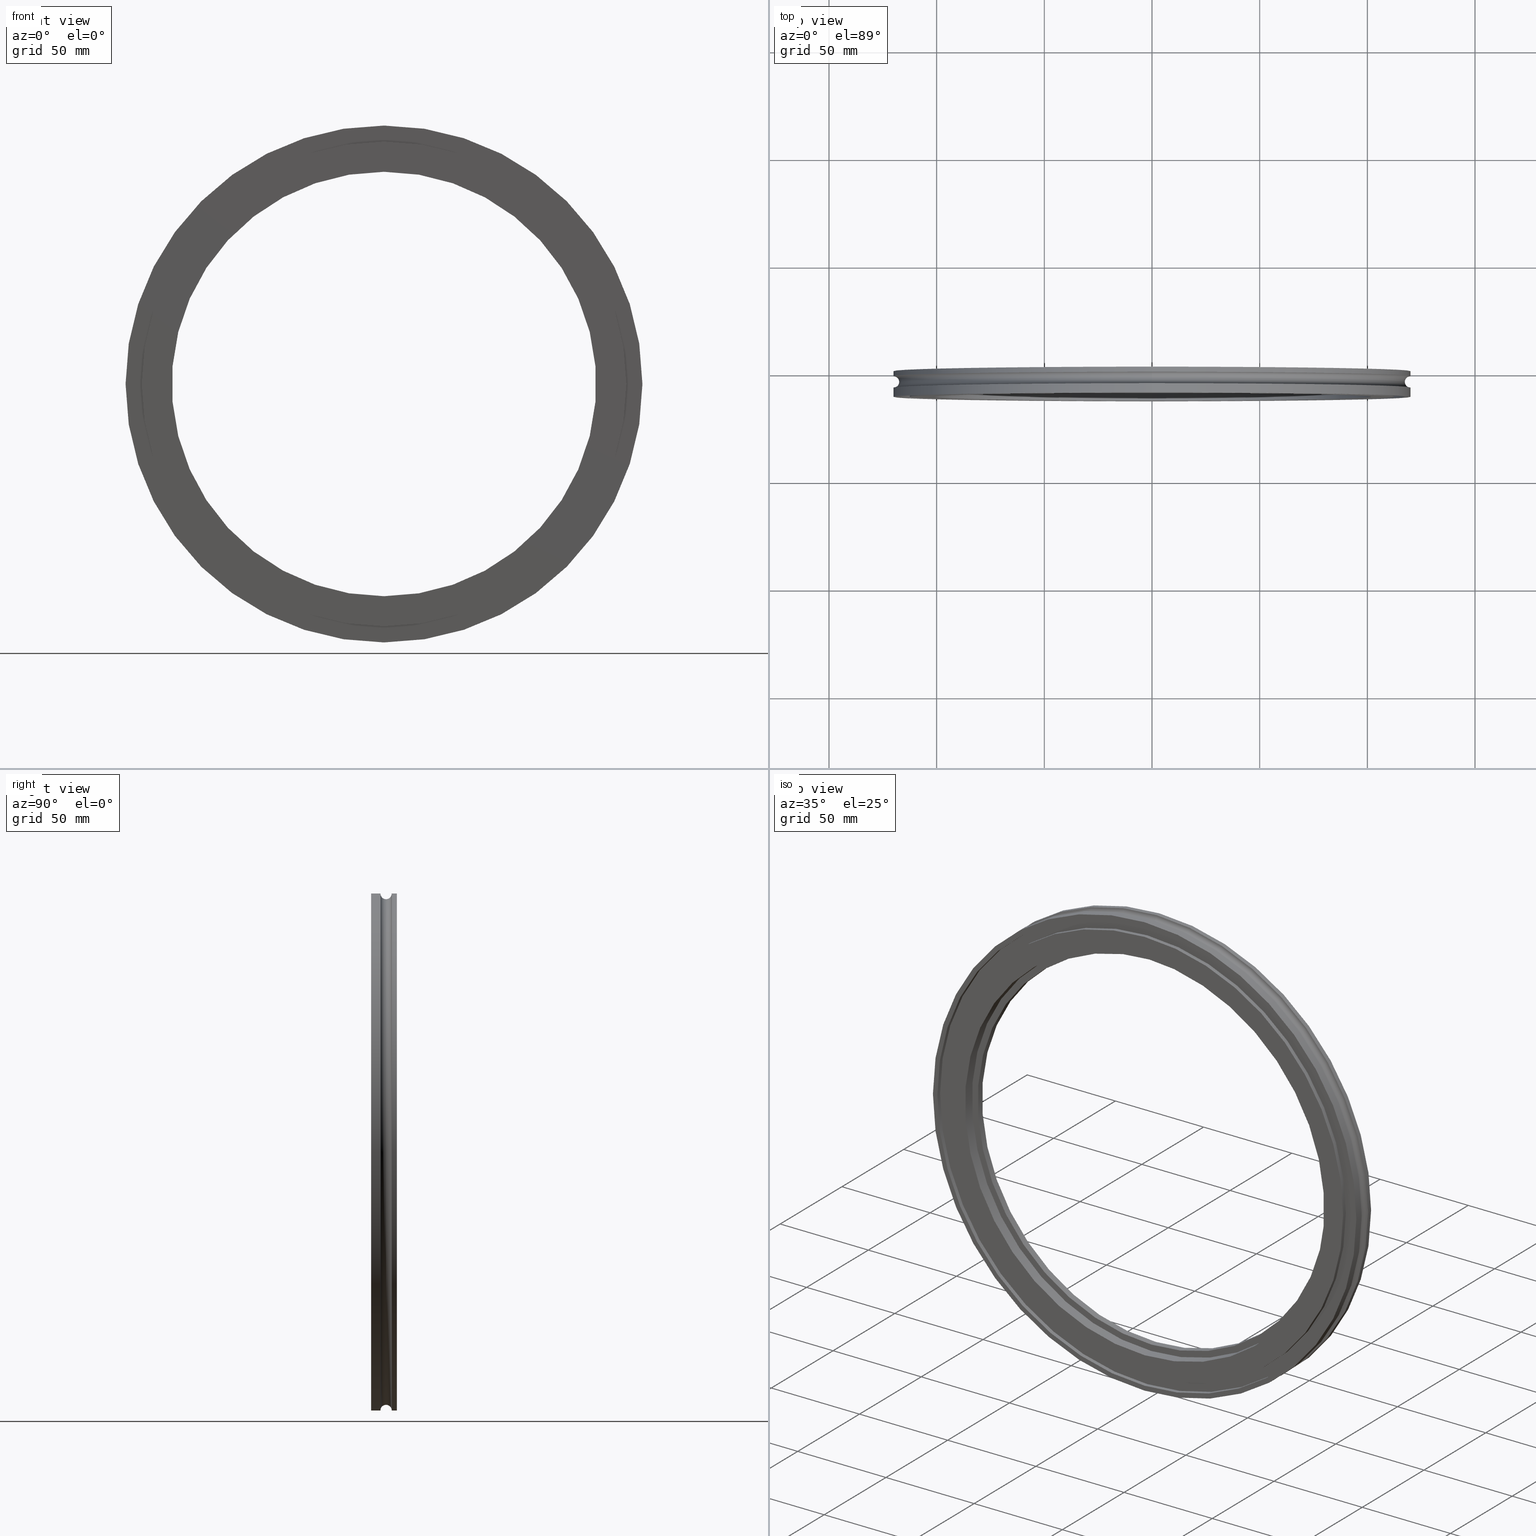
[diagram: canonical four-view strip — front | top / right | iso, engineering-drawing reading convention]
A machine part, canonical four-view strip (front | top / right | iso — engineering-drawing reading convention). The complete STEP part file that produces these views, byte-faithful:
ISO-10303-21;
HEADER;
FILE_DESCRIPTION (( 'STEP AP214' ),
    '1' );
FILE_NAME ('813003.STEP',
    '2024-01-16T15:40:27',
    ( '' ),
    ( '' ),
    'SwSTEP 2.0',
    'SolidWorks 2022',
    '' );
FILE_SCHEMA (( 'AUTOMOTIVE_DESIGN' ));
ENDSEC;

DATA;
#1 = SURFACE_SIDE_STYLE ('',( #209 ) ) ;
#2 = DIRECTION ( 'NONE',  ( -0.000000000000000000, 1.000000000000000000, -0.000000000000000000 ) ) ;
#3 = EDGE_CURVE ( 'NONE', #571, #254, #626, .T. ) ;
#4 = EDGE_LOOP ( 'NONE', ( #165, #441, #622, #643 ) ) ;
#5 = SURFACE_STYLE_FILL_AREA ( #435 ) ;
#6 = AXIS2_PLACEMENT_3D ( 'NONE', #371, #2, #582 ) ;
#7 = CYLINDRICAL_SURFACE ( 'NONE', #499, 4.621999999999999886 ) ;
#8 = AXIS2_PLACEMENT_3D ( 'NONE', #625, #617, #677 ) ;
#9 = VERTEX_POINT ( 'NONE', #177 ) ;
#10 = PRESENTATION_LAYER_ASSIGNMENT (  '', '', ( #127 ) ) ;
#11 = DIRECTION ( 'NONE',  ( -0.000000000000000000, 1.000000000000000000, -0.000000000000000000 ) ) ;
#12 = FACE_BOUND ( 'NONE', #592, .T. ) ;
#13 = DIRECTION ( 'NONE',  ( 0.000000000000000000, 0.000000000000000000, 1.000000000000000000 ) ) ;
#14 = EDGE_CURVE ( 'NONE', #276, #164, #326, .T. ) ;
#15 = ORIENTED_EDGE ( 'NONE', *, *, #360, .F. ) ;
#16 = PLANE ( 'NONE',  #294 ) ;
#17 = AXIS2_PLACEMENT_3D ( 'NONE', #166, #119, #375 ) ;
#18 = TOROIDAL_SURFACE ( 'NONE', #505, 4.724999999999999645, 0.1029999999999999943 ) ;
#19 = DIRECTION ( 'NONE',  ( -0.000000000000000000, 1.000000000000000000, -0.000000000000000000 ) ) ;
#20 = DIRECTION ( 'NONE',  ( -0.000000000000000000, 1.000000000000000000, -0.000000000000000000 ) ) ;
#21 = DIRECTION ( 'NONE',  ( 0.000000000000000000, 0.000000000000000000, 1.000000000000000000 ) ) ;
#22 = ADVANCED_FACE ( 'NONE', ( #493 ), #651, .F. ) ;
#23 = DIRECTION ( 'NONE',  ( -0.000000000000000000, 1.000000000000000000, -0.000000000000000000 ) ) ;
#24 = AXIS2_PLACEMENT_3D ( 'NONE', #256, #357, #407 ) ;
#25 = VERTEX_POINT ( 'NONE', #437 ) ;
#26 = AXIS2_PLACEMENT_3D ( 'NONE', #515, #23, #560 ) ;
#27 = MANIFOLD_SOLID_BREP ( 'Revolve1', #476 ) ;
#28 = AXIS2_PLACEMENT_3D ( 'NONE', #122, #173, #182 ) ;
#29 = DIRECTION ( 'NONE',  ( 0.000000000000000000, 0.000000000000000000, 1.000000000000000000 ) ) ;
#30 = AXIS2_PLACEMENT_3D ( 'NONE', #697, #273, #480 ) ;
#31 = FACE_OUTER_BOUND ( 'NONE', #120, .T. ) ;
#32 = ORIENTED_EDGE ( 'NONE', *, *, #110, .F. ) ;
#33 = EDGE_CURVE ( 'NONE', #9, #495, #641, .T. ) ;
#34 = CARTESIAN_POINT ( 'NONE',  ( 4.751629580691730769E-16, -0.2500000000000001110, -3.880000000000000338 ) ) ;
#35 = FACE_OUTER_BOUND ( 'NONE', #62, .T. ) ;
#36 = ORIENTED_EDGE ( 'NONE', *, *, #306, .F. ) ;
#37 = CARTESIAN_POINT ( 'NONE',  ( 0.000000000000000000, -0.3850000000000000089, 4.625000000000000000 ) ) ;
#38 = DIRECTION ( 'NONE',  ( -0.000000000000000000, 1.000000000000000000, -0.000000000000000000 ) ) ;
#39 = ORIENTED_EDGE ( 'NONE', *, *, #619, .T. ) ;
#40 = AXIS2_PLACEMENT_3D ( 'NONE', #135, #336, #603 ) ;
#41 = CIRCLE ( 'NONE', #26, 4.009999999999999787 ) ;
#42 = FACE_OUTER_BOUND ( 'NONE', #533, .T. ) ;
#43 = CIRCLE ( 'NONE', #251, 3.880000000000000338 ) ;
#44 = DIRECTION ( 'NONE',  ( -0.000000000000000000, 1.000000000000000000, -0.000000000000000000 ) ) ;
#45 = ORIENTED_EDGE ( 'NONE', *, *, #102, .T. ) ;
#46 = ORIENTED_EDGE ( 'NONE', *, *, #645, .F. ) ;
#47 = SHAPE_DEFINITION_REPRESENTATION ( #485, #190 ) ;
#48 = CARTESIAN_POINT ( 'NONE',  ( 0.000000000000000000, -0.3850000000000000089, 0.000000000000000000 ) ) ;
#49 = EDGE_LOOP ( 'NONE', ( #654, #680, #691, #133 ) ) ;
#50 = EDGE_CURVE ( 'NONE', #430, #581, #150, .T. ) ;
#51 = CARTESIAN_POINT ( 'NONE',  ( 0.000000000000000000, -0.2500000000000001110, 3.880000000000000338 ) ) ;
#52 = ORIENTED_EDGE ( 'NONE', *, *, #292, .F. ) ;
#53 = CIRCLE ( 'NONE', #461, 4.724999999999998757 ) ;
#54 =( NAMED_UNIT ( * ) PLANE_ANGLE_UNIT ( ) SI_UNIT ( $, .RADIAN. ) );
#55 = FACE_OUTER_BOUND ( 'NONE', #686, .T. ) ;
#56 =( GEOMETRIC_REPRESENTATION_CONTEXT ( 3 ) GLOBAL_UNCERTAINTY_ASSIGNED_CONTEXT ( ( #319 ) ) GLOBAL_UNIT_ASSIGNED_CONTEXT ( ( #484, #63, #660 ) ) REPRESENTATION_CONTEXT ( 'NONE', 'WORKASPACE' ) );
#57 = VERTEX_POINT ( 'NONE', #280 ) ;
#58 = EDGE_CURVE ( 'NONE', #650, #531, #241, .T. ) ;
#59 = CARTESIAN_POINT ( 'NONE',  ( 0.000000000000000000, 0.000000000000000000, 0.000000000000000000 ) ) ;
#60 = ORIENTED_EDGE ( 'NONE', *, *, #477, .F. ) ;
#61 = CARTESIAN_POINT ( 'NONE',  ( 5.786456125971243047E-16, 0.000000000000000000, -4.724999999999999645 ) ) ;
#62 = EDGE_LOOP ( 'NONE', ( #272, #215 ) ) ;
#63 =( NAMED_UNIT ( * ) PLANE_ANGLE_UNIT ( ) SI_UNIT ( $, .RADIAN. ) );
#64 = DIRECTION ( 'NONE',  ( -0.000000000000000000, 1.000000000000000000, -0.000000000000000000 ) ) ;
#65 = AXIS2_PLACEMENT_3D ( 'NONE', #286, #64, #447 ) ;
#66 = EDGE_CURVE ( 'NONE', #531, #198, #204, .T. ) ;
#67 = CARTESIAN_POINT ( 'NONE',  ( 0.000000000000000000, -0.4700000000000000289, 0.000000000000000000 ) ) ;
#68 = DIRECTION ( 'NONE',  ( 0.000000000000000000, -0.000000000000000000, -1.000000000000000000 ) ) ;
#69 = EDGE_CURVE ( 'NONE', #642, #365, #43, .T. ) ;
#70 = FILL_AREA_STYLE_COLOUR ( '', #672 ) ;
#71 = EDGE_CURVE ( 'NONE', #136, #107, #139, .T. ) ;
#72 = DIMENSIONAL_EXPONENTS ( 1.000000000000000000, 0.000000000000000000, 0.000000000000000000, 0.000000000000000000, 0.000000000000000000, 0.000000000000000000, 0.000000000000000000 ) ;
#73 = CARTESIAN_POINT ( 'NONE',  ( 0.000000000000000000, 0.000000000000000000, 0.000000000000000000 ) ) ;
#74 = DIRECTION ( 'NONE',  ( 0.000000000000000000, 0.000000000000000000, 1.000000000000000000 ) ) ;
#75 = CARTESIAN_POINT ( 'NONE',  ( 4.621999999999999886, 0.000000000000000000, 0.000000000000000000 ) ) ;
#76 = VECTOR ( 'NONE', #20, 39.37007874015748143 ) ;
#77 = CIRCLE ( 'NONE', #605, 4.621999999999999886 ) ;
#78 = AXIS2_PLACEMENT_3D ( 'NONE', #406, #88, #144 ) ;
#79 = EDGE_CURVE ( 'NONE', #581, #430, #314, .T. ) ;
#80 = DIRECTION ( 'NONE',  ( -0.000000000000000000, 1.000000000000000000, -0.000000000000000000 ) ) ;
#81 = DIRECTION ( 'NONE',  ( -0.000000000000000000, 1.000000000000000000, -0.000000000000000000 ) ) ;
#82 = FACE_BOUND ( 'NONE', #172, .T. ) ;
#83 = LINE ( 'NONE', #468, #246 ) ;
#84 = AXIS2_PLACEMENT_3D ( 'NONE', #117, #330, #540 ) ;
#85 = ORIENTED_EDGE ( 'NONE', *, *, #537, .F. ) ;
#86 = AXIS2_PLACEMENT_3D ( 'NONE', #197, #635, #152 ) ;
#87 = ADVANCED_FACE ( 'NONE', ( #128 ), #284, .F. ) ;
#88 = DIRECTION ( 'NONE',  ( -0.000000000000000000, 1.000000000000000000, -0.000000000000000000 ) ) ;
#89 = DIRECTION ( 'NONE',  ( -0.000000000000000000, 1.000000000000000000, -0.000000000000000000 ) ) ;
#90 = CARTESIAN_POINT ( 'NONE',  ( 0.000000000000000000, -0.3850000000000000089, 0.000000000000000000 ) ) ;
#91 = CARTESIAN_POINT ( 'NONE',  ( 5.786456125971244033E-16, -0.2999999999999999889, -4.725000000000000533 ) ) ;
#92 = EDGE_LOOP ( 'NONE', ( #633, #601, #222, #15 ) ) ;
#93 = VERTEX_POINT ( 'NONE', #339 ) ;
#94 = DIRECTION ( 'NONE',  ( 0.000000000000000000, 0.000000000000000000, 1.000000000000000000 ) ) ;
#95 = CARTESIAN_POINT ( 'NONE',  ( 5.663991446056508491E-16, -0.4699999999999999734, -4.625000000000000000 ) ) ;
#96 = ORIENTED_EDGE ( 'NONE', *, *, #388, .T. ) ;
#97 = AXIS2_PLACEMENT_3D ( 'NONE', #549, #382, #74 ) ;
#98 = AXIS2_PLACEMENT_3D ( 'NONE', #48, #221, #646 ) ;
#99 = ORIENTED_EDGE ( 'NONE', *, *, #370, .F. ) ;
#100 = CIRCLE ( 'NONE', #521, 0.1029999999999999666 ) ;
#101 = CARTESIAN_POINT ( 'NONE',  ( 0.000000000000000000, 0.000000000000000000, 0.000000000000000000 ) ) ;
#102 = EDGE_CURVE ( 'NONE', #628, #25, #405, .T. ) ;
#103 = CARTESIAN_POINT ( 'NONE',  ( 4.910833664580885594E-16, 0.000000000000000000, -4.009999999999998899 ) ) ;
#104 = ORIENTED_EDGE ( 'NONE', *, *, #678, .T. ) ;
#105 = ORIENTED_EDGE ( 'NONE', *, *, #14, .F. ) ;
#106 = FACE_OUTER_BOUND ( 'NONE', #92, .T. ) ;
#107 = VERTEX_POINT ( 'NONE', #632 ) ;
#108 = ORIENTED_EDGE ( 'NONE', *, *, #609, .T. ) ;
#109 = EDGE_LOOP ( 'NONE', ( #526, #213, #584, #684 ) ) ;
#110 = EDGE_CURVE ( 'NONE', #581, #474, #83, .T. ) ;
#111 = ORIENTED_EDGE ( 'NONE', *, *, #187, .T. ) ;
#112 = CIRCLE ( 'NONE', #24, 3.880000000000000338 ) ;
#113 = AXIS2_PLACEMENT_3D ( 'NONE', #577, #318, #264 ) ;
#114 = AXIS2_PLACEMENT_3D ( 'NONE', #243, #289, #68 ) ;
#115 = DIRECTION ( 'NONE',  ( -0.000000000000000000, 1.000000000000000000, -0.000000000000000000 ) ) ;
#116 = ORIENTED_EDGE ( 'NONE', *, *, #288, .F. ) ;
#117 = CARTESIAN_POINT ( 'NONE',  ( 0.000000000000000000, -0.1970000000000000084, 0.000000000000000000 ) ) ;
#118 =( NAMED_UNIT ( * ) PLANE_ANGLE_UNIT ( ) SI_UNIT ( $, .RADIAN. ) );
#119 = DIRECTION ( 'NONE',  ( -0.000000000000000000, 1.000000000000000000, -0.000000000000000000 ) ) ;
#120 = EDGE_LOOP ( 'NONE', ( #99, #52, #647, #240 ) ) ;
#121 = CARTESIAN_POINT ( 'NONE',  ( 5.660317505659066563E-16, 0.000000000000000000, -4.621999999999999886 ) ) ;
#122 = CARTESIAN_POINT ( 'NONE',  ( 0.000000000000000000, 0.000000000000000000, 0.000000000000000000 ) ) ;
#123 = DIRECTION ( 'NONE',  ( -1.000000000000000000, 0.000000000000000000, 0.000000000000000000 ) ) ;
#124 = AXIS2_PLACEMENT_3D ( 'NONE', #212, #218, #364 ) ;
#125 = PRODUCT_RELATED_PRODUCT_CATEGORY ( 'part', '', ( #206 ) ) ;
#126 = AXIS2_PLACEMENT_3D ( 'NONE', #669, #191, #140 ) ;
#127 = STYLED_ITEM ( 'NONE', ( #665 ), #27 ) ;
#128 = FACE_OUTER_BOUND ( 'NONE', #195, .T. ) ;
#129 = DIRECTION ( 'NONE',  ( -0.000000000000000000, 1.000000000000000000, -0.000000000000000000 ) ) ;
#130 = EDGE_LOOP ( 'NONE', ( #528, #562 ) ) ;
#131 = DIRECTION ( 'NONE',  ( 0.000000000000000000, 0.000000000000000000, 1.000000000000000000 ) ) ;
#132 = FACE_OUTER_BOUND ( 'NONE', #683, .T. ) ;
#133 = ORIENTED_EDGE ( 'NONE', *, *, #609, .F. ) ;
#134 = EDGE_CURVE ( 'NONE', #365, #642, #112, .T. ) ;
#135 = CARTESIAN_POINT ( 'NONE',  ( 0.000000000000000000, -0.1100000000000000006, 0.000000000000000000 ) ) ;
#136 = VERTEX_POINT ( 'NONE', #551 ) ;
#137 = AXIS2_PLACEMENT_3D ( 'NONE', #297, #129, #21 ) ;
#138 = CIRCLE ( 'NONE', #555, 4.429000000000000270 ) ;
#139 = CIRCLE ( 'NONE', #30, 3.880000000000000338 ) ;
#140 = DIRECTION ( 'NONE',  ( 0.000000000000000000, 0.000000000000000000, 1.000000000000000000 ) ) ;
#141 = DIRECTION ( 'NONE',  ( -0.000000000000000000, 1.000000000000000000, -0.000000000000000000 ) ) ;
#142 = EDGE_CURVE ( 'NONE', #323, #487, #604, .T. ) ;
#143 = CYLINDRICAL_SURFACE ( 'NONE', #563, 4.625000000000000000 ) ;
#144 = DIRECTION ( 'NONE',  ( 0.000000000000000000, 0.000000000000000000, 1.000000000000000000 ) ) ;
#145 = CARTESIAN_POINT ( 'NONE',  ( 0.000000000000000000, 0.000000000000000000, 0.000000000000000000 ) ) ;
#146 = ORIENTED_EDGE ( 'NONE', *, *, #500, .F. ) ;
#147 = AXIS2_PLACEMENT_3D ( 'NONE', #145, #278, #170 ) ;
#148 = CIRCLE ( 'NONE', #664, 4.621999999999999886 ) ;
#149 = MECHANICAL_DESIGN_GEOMETRIC_PRESENTATION_REPRESENTATION (  '', ( #616 ), #203 ) ;
#150 = CIRCLE ( 'NONE', #508, 4.429000000000000270 ) ;
#151 = LINE ( 'NONE', #463, #690 ) ;
#152 = DIRECTION ( 'NONE',  ( 0.000000000000000000, 0.000000000000000000, 1.000000000000000000 ) ) ;
#153 = ORIENTED_EDGE ( 'NONE', *, *, #671, .T. ) ;
#154 = CARTESIAN_POINT ( 'NONE',  ( 5.423960673423627301E-16, -0.4700000000000000289, -4.429000000000000270 ) ) ;
#155 = FACE_OUTER_BOUND ( 'NONE', #317, .T. ) ;
#156 = EDGE_LOOP ( 'NONE', ( #472, #469, #108, #539 ) ) ;
#157 = EDGE_CURVE ( 'NONE', #189, #374, #200, .T. ) ;
#158 = FILL_AREA_STYLE ('',( #325 ) ) ;
#159 = LINE ( 'NONE', #267, #614 ) ;
#160 = ORIENTED_EDGE ( 'NONE', *, *, #572, .F. ) ;
#161 = ORIENTED_EDGE ( 'NONE', *, *, #69, .F. ) ;
#162 = PRODUCT_CONTEXT ( 'NONE', #652, 'mechanical' ) ;
#163 = FACE_BOUND ( 'NONE', #211, .T. ) ;
#164 = VERTEX_POINT ( 'NONE', #91 ) ;
#165 = ORIENTED_EDGE ( 'NONE', *, *, #629, .F. ) ;
#166 = CARTESIAN_POINT ( 'NONE',  ( 0.000000000000000000, 0.000000000000000000, 0.000000000000000000 ) ) ;
#167 = ADVANCED_FACE ( 'NONE', ( #569 ), #143, .F. ) ;
#168 = ORIENTED_EDGE ( 'NONE', *, *, #439, .T. ) ;
#169 = SURFACE_STYLE_USAGE ( .BOTH. , #1 ) ;
#170 = DIRECTION ( 'NONE',  ( 0.000000000000000000, 0.000000000000000000, 1.000000000000000000 ) ) ;
#171 = UNCERTAINTY_MEASURE_WITH_UNIT (LENGTH_MEASURE( 1.000000000000000082E-05 ), #378, 'distance_accuracy_value', 'NONE');
#172 = EDGE_LOOP ( 'NONE', ( #265, #329 ) ) ;
#173 = DIRECTION ( 'NONE',  ( -0.000000000000000000, 1.000000000000000000, -0.000000000000000000 ) ) ;
#174 =( LENGTH_UNIT ( ) NAMED_UNIT ( * ) SI_UNIT ( $, .METRE. ) );
#175 = CARTESIAN_POINT ( 'NONE',  ( 0.000000000000000000, -0.4699999999999999734, 4.625000000000000000 ) ) ;
#176 = ORIENTED_EDGE ( 'NONE', *, *, #306, .T. ) ;
#177 = CARTESIAN_POINT ( 'NONE',  ( 0.000000000000000000, 0.000000000000000000, 4.724999999999999645 ) ) ;
#178 = DIRECTION ( 'NONE',  ( 1.224646799147350989E-16, 0.000000000000000000, -1.000000000000000000 ) ) ;
#179 = DIRECTION ( 'NONE',  ( -0.000000000000000000, 1.000000000000000000, -0.000000000000000000 ) ) ;
#180 = ADVANCED_FACE ( 'NONE', ( #35, #459 ), #308, .F. ) ;
#181 = CARTESIAN_POINT ( 'NONE',  ( 0.000000000000000000, -0.1970000000000000084, 0.000000000000000000 ) ) ;
#182 = DIRECTION ( 'NONE',  ( 0.000000000000000000, 0.000000000000000000, 1.000000000000000000 ) ) ;
#183 = AXIS2_PLACEMENT_3D ( 'NONE', #302, #89, #675 ) ;
#184 = CYLINDRICAL_SURFACE ( 'NONE', #390, 3.880000000000000338 ) ;
#185 = AXIS2_PLACEMENT_3D ( 'NONE', #449, #662, #389 ) ;
#186 = CARTESIAN_POINT ( 'NONE',  ( 5.786456125971243047E-16, -0.4699999999999998623, -4.724999999999999645 ) ) ;
#187 = EDGE_CURVE ( 'NONE', #531, #650, #53, .T. ) ;
#188 = DIRECTION ( 'NONE',  ( 0.000000000000000000, 0.000000000000000000, 1.000000000000000000 ) ) ;
#189 = VERTEX_POINT ( 'NONE', #95 ) ;
#190 = ADVANCED_BREP_SHAPE_REPRESENTATION ( '813003', ( #27, #466 ), #367 ) ;
#191 = DIRECTION ( 'NONE',  ( -0.000000000000000000, 1.000000000000000000, 0.000000000000000000 ) ) ;
#192 = EDGE_CURVE ( 'NONE', #487, #323, #576, .T. ) ;
#193 = LINE ( 'NONE', #345, #489 ) ;
#194 = DIRECTION ( 'NONE',  ( 0.000000000000000000, 0.000000000000000000, 1.000000000000000000 ) ) ;
#195 = EDGE_LOOP ( 'NONE', ( #648, #587, #425, #630 ) ) ;
#196 = DIRECTION ( 'NONE',  ( -0.000000000000000000, 1.000000000000000000, -0.000000000000000000 ) ) ;
#197 = CARTESIAN_POINT ( 'NONE',  ( 0.000000000000000000, 0.000000000000000000, 0.000000000000000000 ) ) ;
#198 = VERTEX_POINT ( 'NONE', #258 ) ;
#199 = CARTESIAN_POINT ( 'NONE',  ( 5.663991446056508491E-16, -0.3850000000000000089, -4.625000000000000000 ) ) ;
#200 = CIRCLE ( 'NONE', #350, 4.625000000000000000 ) ;
#201 = DIRECTION ( 'NONE',  ( -0.000000000000000000, 1.000000000000000000, -0.000000000000000000 ) ) ;
#202 = VECTOR ( 'NONE', #327, 39.37007874015748143 ) ;
#203 =( GEOMETRIC_REPRESENTATION_CONTEXT ( 3 ) GLOBAL_UNCERTAINTY_ASSIGNED_CONTEXT ( ( #171 ) ) GLOBAL_UNIT_ASSIGNED_CONTEXT ( ( #378, #118, #590 ) ) REPRESENTATION_CONTEXT ( 'NONE', 'WORKASPACE' ) );
#204 = CIRCLE ( 'NONE', #296, 0.1029999999999999666 ) ;
#205 = CARTESIAN_POINT ( 'NONE',  ( 0.000000000000000000, -0.3850000000000000089, 0.000000000000000000 ) ) ;
#206 = PRODUCT ( '813003', '813003', '', ( #162 ) ) ;
#207 = CARTESIAN_POINT ( 'NONE',  ( 0.000000000000000000, -0.2500000000000001110, 4.009999999999998899 ) ) ;
#208 = EDGE_LOOP ( 'NONE', ( #373, #39 ) ) ;
#209 = SURFACE_STYLE_FILL_AREA ( #158 ) ;
#210 = LINE ( 'NONE', #498, #554 ) ;
#211 = EDGE_LOOP ( 'NONE', ( #548, #688 ) ) ;
#212 = CARTESIAN_POINT ( 'NONE',  ( 4.429000000000000270, -0.4700000000000000289, 0.000000000000000000 ) ) ;
#213 = ORIENTED_EDGE ( 'NONE', *, *, #558, .T. ) ;
#214 = VECTOR ( 'NONE', #685, 39.37007874015748143 ) ;
#215 = ORIENTED_EDGE ( 'NONE', *, *, #331, .F. ) ;
#216 = AXIS2_PLACEMENT_3D ( 'NONE', #275, #229, #640 ) ;
#217 = ADVANCED_FACE ( 'NONE', ( #155 ), #305, .T. ) ;
#218 = DIRECTION ( 'NONE',  ( -0.000000000000000000, 1.000000000000000000, 0.000000000000000000 ) ) ;
#219 = EDGE_LOOP ( 'NONE', ( #400, #529 ) ) ;
#220 = ORIENTED_EDGE ( 'NONE', *, *, #58, .T. ) ;
#221 = DIRECTION ( 'NONE',  ( -0.000000000000000000, 1.000000000000000000, -0.000000000000000000 ) ) ;
#222 = ORIENTED_EDGE ( 'NONE', *, *, #477, .T. ) ;
#223 = DIRECTION ( 'NONE',  ( -0.000000000000000000, 1.000000000000000000, -0.000000000000000000 ) ) ;
#224 = CYLINDRICAL_SURFACE ( 'NONE', #17, 4.429000000000000270 ) ;
#225 = ORIENTED_EDGE ( 'NONE', *, *, #381, .F. ) ;
#226 = CARTESIAN_POINT ( 'NONE',  ( 0.000000000000000000, -0.09400000000000001410, 0.000000000000000000 ) ) ;
#227 = AXIS2_PLACEMENT_3D ( 'NONE', #309, #252, #255 ) ;
#228 = CIRCLE ( 'NONE', #78, 4.724999999999999645 ) ;
#229 = DIRECTION ( 'NONE',  ( -0.000000000000000000, 1.000000000000000000, -0.000000000000000000 ) ) ;
#230 = CARTESIAN_POINT ( 'NONE',  ( 0.000000000000000000, -0.2500000000000001110, 0.000000000000000000 ) ) ;
#231 = FACE_OUTER_BOUND ( 'NONE', #156, .T. ) ;
#232 = EDGE_LOOP ( 'NONE', ( #46, #263, #153, #168 ) ) ;
#233 = DIRECTION ( 'NONE',  ( 0.000000000000000000, 0.000000000000000000, 1.000000000000000000 ) ) ;
#234 = DIRECTION ( 'NONE',  ( -0.000000000000000000, 1.000000000000000000, -0.000000000000000000 ) ) ;
#235 = CARTESIAN_POINT ( 'NONE',  ( 0.000000000000000000, 0.000000000000000000, 0.000000000000000000 ) ) ;
#236 = CIRCLE ( 'NONE', #98, 4.625000000000000000 ) ;
#237 = ADVANCED_FACE ( 'NONE', ( #509 ), #667, .F. ) ;
#238 = FACE_OUTER_BOUND ( 'NONE', #404, .T. ) ;
#239 = VECTOR ( 'NONE', #80, 39.37007874015748143 ) ;
#240 = ORIENTED_EDGE ( 'NONE', *, *, #338, .T. ) ;
#241 = CIRCLE ( 'NONE', #410, 4.724999999999998757 ) ;
#242 = CARTESIAN_POINT ( 'NONE',  ( 0.000000000000000000, -0.4700000000000000844, 0.000000000000000000 ) ) ;
#243 = CARTESIAN_POINT ( 'NONE',  ( 3.880000000000000338, -0.1100000000000000006, 0.000000000000000000 ) ) ;
#244 = PRODUCT_DEFINITION ( 'UNKNOWN', '', #295, #413 ) ;
#245 = DIRECTION ( 'NONE',  ( 1.000000000000000000, 0.000000000000000000, 1.224646799147353207E-16 ) ) ;
#246 = VECTOR ( 'NONE', #201, 39.37007874015748143 ) ;
#247 = CARTESIAN_POINT ( 'NONE',  ( 0.000000000000000000, -0.09400000000000001410, 4.724999999999999645 ) ) ;
#248 = CIRCLE ( 'NONE', #113, 4.009999999999998899 ) ;
#249 = VECTOR ( 'NONE', #673, 39.37007874015748143 ) ;
#250 = ORIENTED_EDGE ( 'NONE', *, *, #338, .F. ) ;
#251 = AXIS2_PLACEMENT_3D ( 'NONE', #230, #11, #598 ) ;
#252 = DIRECTION ( 'NONE',  ( -0.000000000000000000, 1.000000000000000000, 0.000000000000000000 ) ) ;
#253 = CARTESIAN_POINT ( 'NONE',  ( 0.000000000000000000, -0.09400000000000001410, 0.000000000000000000 ) ) ;
#254 = VERTEX_POINT ( 'NONE', #207 ) ;
#255 = DIRECTION ( 'NONE',  ( 0.000000000000000000, 0.000000000000000000, 1.000000000000000000 ) ) ;
#256 = CARTESIAN_POINT ( 'NONE',  ( 0.000000000000000000, -0.2500000000000001110, 0.000000000000000000 ) ) ;
#257 = DIRECTION ( 'NONE',  ( -0.000000000000000000, 1.000000000000000000, -0.000000000000000000 ) ) ;
#258 = CARTESIAN_POINT ( 'NONE',  ( 5.660317505659065576E-16, -0.1970000000000000084, -4.621999999999999886 ) ) ;
#259 = ORIENTED_EDGE ( 'NONE', *, *, #331, .T. ) ;
#260 = ORIENTED_EDGE ( 'NONE', *, *, #33, .F. ) ;
#261 = CARTESIAN_POINT ( 'NONE',  ( 0.000000000000000000, 0.000000000000000000, 0.000000000000000000 ) ) ;
#262 = ORIENTED_EDGE ( 'NONE', *, *, #645, .T. ) ;
#263 = ORIENTED_EDGE ( 'NONE', *, *, #134, .F. ) ;
#264 = DIRECTION ( 'NONE',  ( 0.000000000000000000, 0.000000000000000000, 1.000000000000000000 ) ) ;
#265 = ORIENTED_EDGE ( 'NONE', *, *, #134, .T. ) ;
#266 = ADVANCED_FACE ( 'NONE', ( #513 ), #523, .F. ) ;
#267 = CARTESIAN_POINT ( 'NONE',  ( 0.000000000000000000, 0.000000000000000000, 4.429000000000000270 ) ) ;
#268 = ORIENTED_EDGE ( 'NONE', *, *, #671, .F. ) ;
#269 = CIRCLE ( 'NONE', #291, 4.009999999999999787 ) ;
#270 = AXIS2_PLACEMENT_3D ( 'NONE', #205, #564, #347 ) ;
#271 = DIRECTION ( 'NONE',  ( -0.000000000000000000, 1.000000000000000000, -0.000000000000000000 ) ) ;
#272 = ORIENTED_EDGE ( 'NONE', *, *, #678, .F. ) ;
#273 = DIRECTION ( 'NONE',  ( -0.000000000000000000, 1.000000000000000000, -0.000000000000000000 ) ) ;
#274 =( NAMED_UNIT ( * ) SI_UNIT ( $, .STERADIAN. ) SOLID_ANGLE_UNIT ( ) );
#275 = CARTESIAN_POINT ( 'NONE',  ( 0.000000000000000000, -0.1100000000000000006, 0.000000000000000000 ) ) ;
#276 = VERTEX_POINT ( 'NONE', #682 ) ;
#277 = CARTESIAN_POINT ( 'NONE',  ( 0.000000000000000000, -0.2999999999999999889, 0.000000000000000000 ) ) ;
#278 = DIRECTION ( 'NONE',  ( -0.000000000000000000, 1.000000000000000000, -0.000000000000000000 ) ) ;
#279 = EDGE_CURVE ( 'NONE', #542, #254, #412, .T. ) ;
#280 = CARTESIAN_POINT ( 'NONE',  ( 0.000000000000000000, -0.1970000000000000084, 4.621999999999999886 ) ) ;
#281 = AXIS2_PLACEMENT_3D ( 'NONE', #310, #567, #348 ) ;
#282 = TOROIDAL_SURFACE ( 'NONE', #391, 4.724999999999999645, 0.1029999999999999943 ) ;
#283 = DIRECTION ( 'NONE',  ( 0.000000000000000000, -1.000000000000000000, 0.000000000000000000 ) ) ;
#284 = TOROIDAL_SURFACE ( 'NONE', #84, 4.724999999999999645, 0.1029999999999999943 ) ;
#285 = LENGTH_MEASURE_WITH_UNIT ( LENGTH_MEASURE( 0.02539999999999999897 ), #656 );
#286 = CARTESIAN_POINT ( 'NONE',  ( 0.000000000000000000, 0.000000000000000000, 0.000000000000000000 ) ) ;
#287 = SURFACE_SIDE_STYLE ('',( #5 ) ) ;
#288 = EDGE_CURVE ( 'NONE', #531, #495, #210, .T. ) ;
#289 = DIRECTION ( 'NONE',  ( 0.000000000000000000, -1.000000000000000000, 0.000000000000000000 ) ) ;
#290 = DIRECTION ( 'NONE',  ( -0.000000000000000000, 1.000000000000000000, -0.000000000000000000 ) ) ;
#291 = AXIS2_PLACEMENT_3D ( 'NONE', #242, #448, #561 ) ;
#292 = EDGE_CURVE ( 'NONE', #542, #517, #269, .T. ) ;
#293 = CARTESIAN_POINT ( 'NONE',  ( 5.786456125971243047E-16, 0.000000000000000000, -4.724999999999999645 ) ) ;
#294 = AXIS2_PLACEMENT_3D ( 'NONE', #75, #283, #547 ) ;
#295 = PRODUCT_DEFINITION_FORMATION_WITH_SPECIFIED_SOURCE ( 'ANY', '', #206, .NOT_KNOWN. ) ;
#296 = AXIS2_PLACEMENT_3D ( 'NONE', #610, #543, #442 ) ;
#297 = CARTESIAN_POINT ( 'NONE',  ( 0.000000000000000000, 0.000000000000000000, 0.000000000000000000 ) ) ;
#298 = CARTESIAN_POINT ( 'NONE',  ( 4.910833664580885594E-16, -0.2500000000000001110, -4.009999999999998899 ) ) ;
#299 = ADVANCED_FACE ( 'NONE', ( #31 ), #623, .F. ) ;
#300 = ORIENTED_EDGE ( 'NONE', *, *, #288, .T. ) ;
#301 = CARTESIAN_POINT ( 'NONE',  ( 0.000000000000000000, -0.3850000000000000089, 0.000000000000000000 ) ) ;
#302 = CARTESIAN_POINT ( 'NONE',  ( 0.000000000000000000, -0.4699999999999998623, 0.000000000000000000 ) ) ;
#303 = TOROIDAL_SURFACE ( 'NONE', #185, 4.724999999999999645, 0.1029999999999999943 ) ;
#304 = CARTESIAN_POINT ( 'NONE',  ( 5.660317505659067549E-16, -0.1100000000000000006, -4.622000000000000774 ) ) ;
#305 = CYLINDRICAL_SURFACE ( 'NONE', #343, 4.429000000000000270 ) ;
#306 = EDGE_CURVE ( 'NONE', #495, #9, #462, .T. ) ;
#307 = CARTESIAN_POINT ( 'NONE',  ( 4.751629580691730769E-16, 0.000000000000000000, -3.880000000000000338 ) ) ;
#308 = PLANE ( 'NONE',  #663 ) ;
#309 = CARTESIAN_POINT ( 'NONE',  ( 4.724999999999999645, -0.4699999999999999178, 0.000000000000000000 ) ) ;
#310 = CARTESIAN_POINT ( 'NONE',  ( 0.000000000000000000, -0.4699999999999998623, 0.000000000000000000 ) ) ;
#311 = AXIS2_PLACEMENT_3D ( 'NONE', #538, #527, #379 ) ;
#312 = ORIENTED_EDGE ( 'NONE', *, *, #33, .T. ) ;
#313 = DIRECTION ( 'NONE',  ( 1.000000000000000000, 0.000000000000000000, 0.000000000000000000 ) ) ;
#314 = CIRCLE ( 'NONE', #580, 4.429000000000000270 ) ;
#315 = FACE_OUTER_BOUND ( 'NONE', #518, .T. ) ;
#316 = ADVANCED_FACE ( 'NONE', ( #315 ), #224, .T. ) ;
#317 = EDGE_LOOP ( 'NONE', ( #696, #608, #483, #225 ) ) ;
#318 = DIRECTION ( 'NONE',  ( -0.000000000000000000, 1.000000000000000000, -0.000000000000000000 ) ) ;
#319 = UNCERTAINTY_MEASURE_WITH_UNIT (LENGTH_MEASURE( 1.000000000000000082E-05 ), #484, 'distance_accuracy_value', 'NONE');
#320 = ORIENTED_EDGE ( 'NONE', *, *, #532, .T. ) ;
#321 = VERTEX_POINT ( 'NONE', #332 ) ;
#322 = DIRECTION ( 'NONE',  ( -0.000000000000000000, 1.000000000000000000, -0.000000000000000000 ) ) ;
#323 = VERTEX_POINT ( 'NONE', #424 ) ;
#324 = AXIS2_PLACEMENT_3D ( 'NONE', #261, #627, #465 ) ;
#325 = FILL_AREA_STYLE_COLOUR ( '', #475 ) ;
#326 = CIRCLE ( 'NONE', #566, 4.724999999999999645 ) ;
#327 = DIRECTION ( 'NONE',  ( -0.000000000000000000, 1.000000000000000000, -0.000000000000000000 ) ) ;
#328 = UNCERTAINTY_MEASURE_WITH_UNIT (LENGTH_MEASURE( 1.000000000000000082E-05 ), #595, 'distance_accuracy_value', 'NONE');
#329 = ORIENTED_EDGE ( 'NONE', *, *, #69, .T. ) ;
#330 = DIRECTION ( 'NONE',  ( -0.000000000000000000, 1.000000000000000000, -0.000000000000000000 ) ) ;
#331 = EDGE_CURVE ( 'NONE', #589, #597, #236, .T. ) ;
#332 = CARTESIAN_POINT ( 'NONE',  ( 0.000000000000000000, 0.000000000000000000, 4.621999999999999886 ) ) ;
#333 = ORIENTED_EDGE ( 'NONE', *, *, #532, .F. ) ;
#334 = CARTESIAN_POINT ( 'NONE',  ( 5.786456125971243047E-16, -0.09400000000000001410, -4.724999999999999645 ) ) ;
#335 = AXIS2_PLACEMENT_3D ( 'NONE', #535, #322, #473 ) ;
#336 = DIRECTION ( 'NONE',  ( -0.000000000000000000, 1.000000000000000000, -0.000000000000000000 ) ) ;
#337 = AXIS2_PLACEMENT_3D ( 'NONE', #235, #546, #13 ) ;
#338 = EDGE_CURVE ( 'NONE', #254, #571, #248, .T. ) ;
#339 = CARTESIAN_POINT ( 'NONE',  ( 0.000000000000000000, -0.3850000000000000089, 4.429000000000000270 ) ) ;
#340 = DIRECTION ( 'NONE',  ( 0.000000000000000000, 0.000000000000000000, 1.000000000000000000 ) ) ;
#341 = CARTESIAN_POINT ( 'NONE',  ( 0.000000000000000000, 0.000000000000000000, 0.000000000000000000 ) ) ;
#342 = CARTESIAN_POINT ( 'NONE',  ( 5.423960673423627301E-16, -0.3850000000000000089, -4.429000000000000270 ) ) ;
#343 = AXIS2_PLACEMENT_3D ( 'NONE', #362, #38, #679 ) ;
#344 = CYLINDRICAL_SURFACE ( 'NONE', #65, 4.724999999999999645 ) ;
#345 = CARTESIAN_POINT ( 'NONE',  ( 0.000000000000000000, 0.000000000000000000, 3.880000000000000338 ) ) ;
#346 = ADVANCED_FACE ( 'NONE', ( #106 ), #7, .F. ) ;
#347 = DIRECTION ( 'NONE',  ( 0.000000000000000000, 0.000000000000000000, 1.000000000000000000 ) ) ;
#348 = DIRECTION ( 'NONE',  ( 0.000000000000000000, 0.000000000000000000, 1.000000000000000000 ) ) ;
#349 = EDGE_LOOP ( 'NONE', ( #312, #176 ) ) ;
#350 = AXIS2_PLACEMENT_3D ( 'NONE', #352, #44, #456 ) ;
#351 = CARTESIAN_POINT ( 'NONE',  ( 0.000000000000000000, 0.000000000000000000, 0.000000000000000000 ) ) ;
#352 = CARTESIAN_POINT ( 'NONE',  ( 0.000000000000000000, -0.4699999999999999734, 0.000000000000000000 ) ) ;
#353 = CIRCLE ( 'NONE', #40, 4.622000000000000774 ) ;
#354 = AXIS2_PLACEMENT_3D ( 'NONE', #631, #141, #94 ) ;
#355 = EDGE_LOOP ( 'NONE', ( #146, #333, #385, #460 ) ) ;
#356 = DIRECTION ( 'NONE',  ( 0.000000000000000000, 0.000000000000000000, 1.000000000000000000 ) ) ;
#357 = DIRECTION ( 'NONE',  ( -0.000000000000000000, 1.000000000000000000, -0.000000000000000000 ) ) ;
#358 = EDGE_LOOP ( 'NONE', ( #161, #262, #420, #268 ) ) ;
#359 = ORIENTED_EDGE ( 'NONE', *, *, #292, .T. ) ;
#360 = EDGE_CURVE ( 'NONE', #25, #321, #428, .T. ) ;
#361 = CARTESIAN_POINT ( 'NONE',  ( 5.660317505659066563E-16, 0.000000000000000000, -4.621999999999999886 ) ) ;
#362 = CARTESIAN_POINT ( 'NONE',  ( 0.000000000000000000, 0.000000000000000000, 0.000000000000000000 ) ) ;
#363 = ORIENTED_EDGE ( 'NONE', *, *, #511, .T. ) ;
#364 = DIRECTION ( 'NONE',  ( 0.000000000000000000, 0.000000000000000000, 1.000000000000000000 ) ) ;
#365 = VERTEX_POINT ( 'NONE', #51 ) ;
#366 = CIRCLE ( 'NONE', #311, 0.1029999999999999666 ) ;
#367 =( GEOMETRIC_REPRESENTATION_CONTEXT ( 3 ) GLOBAL_UNCERTAINTY_ASSIGNED_CONTEXT ( ( #328 ) ) GLOBAL_UNIT_ASSIGNED_CONTEXT ( ( #595, #54, #274 ) ) REPRESENTATION_CONTEXT ( 'NONE', 'WORKASPACE' ) );
#368 = ORIENTED_EDGE ( 'NONE', *, *, #79, .F. ) ;
#369 = MECHANICAL_DESIGN_GEOMETRIC_PRESENTATION_REPRESENTATION (  '', ( #127 ), #56 ) ;
#370 = EDGE_CURVE ( 'NONE', #517, #571, #471, .T. ) ;
#371 = CARTESIAN_POINT ( 'NONE',  ( 0.000000000000000000, 0.000000000000000000, 0.000000000000000000 ) ) ;
#372 = ADVANCED_FACE ( 'NONE', ( #436 ), #432, .T. ) ;
#373 = ORIENTED_EDGE ( 'NONE', *, *, #588, .T. ) ;
#374 = VERTEX_POINT ( 'NONE', #175 ) ;
#375 = DIRECTION ( 'NONE',  ( 0.000000000000000000, 0.000000000000000000, 1.000000000000000000 ) ) ;
#376 = ORIENTED_EDGE ( 'NONE', *, *, #492, .T. ) ;
#377 = ORIENTED_EDGE ( 'NONE', *, *, #50, .F. ) ;
#378 =( CONVERSION_BASED_UNIT ( 'INCH', #694 ) LENGTH_UNIT ( ) NAMED_UNIT ( #602 ) );
#379 = DIRECTION ( 'NONE',  ( 0.000000000000000000, 0.000000000000000000, 1.000000000000000000 ) ) ;
#380 = EDGE_LOOP ( 'NONE', ( #377, #368 ) ) ;
#381 = EDGE_CURVE ( 'NONE', #430, #93, #159, .T. ) ;
#382 = DIRECTION ( 'NONE',  ( -0.000000000000000000, 1.000000000000000000, -0.000000000000000000 ) ) ;
#383 = DIRECTION ( 'NONE',  ( 0.000000000000000000, 0.000000000000000000, 1.000000000000000000 ) ) ;
#384 = FACE_OUTER_BOUND ( 'NONE', #380, .T. ) ;
#385 = ORIENTED_EDGE ( 'NONE', *, *, #360, .T. ) ;
#386 = DIRECTION ( 'NONE',  ( -0.000000000000000000, 1.000000000000000000, -0.000000000000000000 ) ) ;
#387 = FACE_OUTER_BOUND ( 'NONE', #130, .T. ) ;
#388 = EDGE_CURVE ( 'NONE', #487, #164, #586, .T. ) ;
#389 = DIRECTION ( 'NONE',  ( 0.000000000000000000, 0.000000000000000000, 1.000000000000000000 ) ) ;
#390 = AXIS2_PLACEMENT_3D ( 'NONE', #556, #234, #659 ) ;
#391 = AXIS2_PLACEMENT_3D ( 'NONE', #503, #396, #356 ) ;
#392 = CYLINDRICAL_SURFACE ( 'NONE', #593, 4.724999999999999645 ) ;
#393 = DIRECTION ( 'NONE',  ( 0.000000000000000000, 0.000000000000000000, 1.000000000000000000 ) ) ;
#394 = CARTESIAN_POINT ( 'NONE',  ( 4.910833664580886580E-16, -0.4700000000000000844, -4.009999999999999787 ) ) ;
#395 = EDGE_CURVE ( 'NONE', #374, #189, #638, .T. ) ;
#396 = DIRECTION ( 'NONE',  ( -0.000000000000000000, 1.000000000000000000, -0.000000000000000000 ) ) ;
#397 = CIRCLE ( 'NONE', #270, 4.429000000000000270 ) ;
#398 = DIRECTION ( 'NONE',  ( -0.000000000000000000, 1.000000000000000000, -0.000000000000000000 ) ) ;
#399 = DIRECTION ( 'NONE',  ( -0.000000000000000000, 1.000000000000000000, 0.000000000000000000 ) ) ;
#400 = ORIENTED_EDGE ( 'NONE', *, *, #395, .T. ) ;
#401 = DIRECTION ( 'NONE',  ( 0.000000000000000000, 0.000000000000000000, 1.000000000000000000 ) ) ;
#402 = ADVANCED_FACE ( 'NONE', ( #384, #689 ), #649, .F. ) ;
#403 = DIRECTION ( 'NONE',  ( -0.000000000000000000, 1.000000000000000000, -0.000000000000000000 ) ) ;
#404 = EDGE_LOOP ( 'NONE', ( #220, #300, #260, #160 ) ) ;
#405 = CIRCLE ( 'NONE', #97, 4.622000000000000774 ) ;
#406 = CARTESIAN_POINT ( 'NONE',  ( 0.000000000000000000, -0.2999999999999999889, 0.000000000000000000 ) ) ;
#407 = DIRECTION ( 'NONE',  ( 0.000000000000000000, 0.000000000000000000, 1.000000000000000000 ) ) ;
#408 = CIRCLE ( 'NONE', #216, 3.880000000000000338 ) ;
#409 = ORIENTED_EDGE ( 'NONE', *, *, #522, .T. ) ;
#410 = AXIS2_PLACEMENT_3D ( 'NONE', #226, #386, #658 ) ;
#411 = CYLINDRICAL_SURFACE ( 'NONE', #354, 4.724999999999999645 ) ;
#412 = LINE ( 'NONE', #574, #214 ) ;
#413 = PRODUCT_DEFINITION_CONTEXT ( 'detailed design', #693, 'design' ) ;
#414 = ORIENTED_EDGE ( 'NONE', *, *, #639, .T. ) ;
#415 = CARTESIAN_POINT ( 'NONE',  ( 4.625000000000000000, -0.3850000000000000089, 0.000000000000000000 ) ) ;
#416 = ORIENTED_EDGE ( 'NONE', *, *, #66, .F. ) ;
#417 = ORIENTED_EDGE ( 'NONE', *, *, #639, .F. ) ;
#418 = EDGE_CURVE ( 'NONE', #57, #276, #366, .T. ) ;
#419 = CARTESIAN_POINT ( 'NONE',  ( 0.000000000000000000, -0.4700000000000000289, 4.429000000000000270 ) ) ;
#420 = ORIENTED_EDGE ( 'NONE', *, *, #71, .T. ) ;
#421 = VECTOR ( 'NONE', #257, 39.37007874015748143 ) ;
#422 = EDGE_LOOP ( 'NONE', ( #692, #409, #259, #417 ) ) ;
#423 = LENGTH_MEASURE_WITH_UNIT ( LENGTH_MEASURE( 0.02539999999999999897 ), #174 );
#424 = CARTESIAN_POINT ( 'NONE',  ( 0.000000000000000000, -0.4699999999999998623, 4.724999999999999645 ) ) ;
#425 = ORIENTED_EDGE ( 'NONE', *, *, #14, .T. ) ;
#426 = ORIENTED_EDGE ( 'NONE', *, *, #395, .F. ) ;
#427 = PRESENTATION_STYLE_ASSIGNMENT (( #169 ) ) ;
#428 = LINE ( 'NONE', #530, #202 ) ;
#429 = ADVANCED_FACE ( 'NONE', ( #55 ), #18, .F. ) ;
#430 = VERTEX_POINT ( 'NONE', #419 ) ;
#431 = DIRECTION ( 'NONE',  ( 0.000000000000000000, 0.000000000000000000, 1.000000000000000000 ) ) ;
#432 = CYLINDRICAL_SURFACE ( 'NONE', #451, 4.724999999999999645 ) ;
#433 = ORIENTED_EDGE ( 'NONE', *, *, #619, .F. ) ;
#434 = CIRCLE ( 'NONE', #137, 4.621999999999999886 ) ;
#435 = FILL_AREA_STYLE ('',( #70 ) ) ;
#436 = FACE_OUTER_BOUND ( 'NONE', #49, .T. ) ;
#437 = CARTESIAN_POINT ( 'NONE',  ( 0.000000000000000000, -0.1100000000000000006, 4.622000000000000774 ) ) ;
#438 = DIMENSIONAL_EXPONENTS ( 1.000000000000000000, 0.000000000000000000, 0.000000000000000000, 0.000000000000000000, 0.000000000000000000, 0.000000000000000000, 0.000000000000000000 ) ;
#439 = EDGE_CURVE ( 'NONE', #107, #136, #408, .T. ) ;
#440 = CARTESIAN_POINT ( 'NONE',  ( 0.000000000000000000, -0.1970000000000000084, 4.724999999999999645 ) ) ;
#441 = ORIENTED_EDGE ( 'NONE', *, *, #370, .T. ) ;
#442 = DIRECTION ( 'NONE',  ( 1.224646799147350989E-16, 0.000000000000000000, -1.000000000000000000 ) ) ;
#443 = ADVANCED_FACE ( 'NONE', ( #163, #611 ), #497, .F. ) ;
#444 = DIRECTION ( 'NONE',  ( -0.000000000000000000, 1.000000000000000000, -0.000000000000000000 ) ) ;
#445 = DIRECTION ( 'NONE',  ( -0.000000000000000000, 1.000000000000000000, -0.000000000000000000 ) ) ;
#446 = PRESENTATION_LAYER_ASSIGNMENT (  '', '', ( #616 ) ) ;
#447 = DIRECTION ( 'NONE',  ( 0.000000000000000000, 0.000000000000000000, 1.000000000000000000 ) ) ;
#448 = DIRECTION ( 'NONE',  ( -0.000000000000000000, 1.000000000000000000, -0.000000000000000000 ) ) ;
#449 = CARTESIAN_POINT ( 'NONE',  ( 0.000000000000000000, -0.1970000000000000084, 0.000000000000000000 ) ) ;
#450 = PLANE ( 'NONE',  #126 ) ;
#451 = AXIS2_PLACEMENT_3D ( 'NONE', #695, #653, #478 ) ;
#452 = AXIS2_PLACEMENT_3D ( 'NONE', #440, #123, #393 ) ;
#453 = LINE ( 'NONE', #512, #249 ) ;
#454 = ADVANCED_FACE ( 'NONE', ( #12, #502 ), #16, .F. ) ;
#455 = FACE_OUTER_BOUND ( 'NONE', #109, .T. ) ;
#456 = DIRECTION ( 'NONE',  ( 0.000000000000000000, 0.000000000000000000, 1.000000000000000000 ) ) ;
#457 = ADVANCED_FACE ( 'NONE', ( #238 ), #344, .T. ) ;
#458 = FACE_OUTER_BOUND ( 'NONE', #514, .T. ) ;
#459 = FACE_BOUND ( 'NONE', #208, .T. ) ;
#460 = ORIENTED_EDGE ( 'NONE', *, *, #537, .T. ) ;
#461 = AXIS2_PLACEMENT_3D ( 'NONE', #253, #403, #516 ) ;
#462 = CIRCLE ( 'NONE', #6, 4.724999999999999645 ) ;
#463 = CARTESIAN_POINT ( 'NONE',  ( 0.000000000000000000, 0.000000000000000000, 4.724999999999999645 ) ) ;
#464 = CIRCLE ( 'NONE', #452, 0.1029999999999999666 ) ;
#465 = DIRECTION ( 'NONE',  ( 0.000000000000000000, 0.000000000000000000, 1.000000000000000000 ) ) ;
#466 = AXIS2_PLACEMENT_3D ( 'NONE', #101, #534, #313 ) ;
#467 = APPLICATION_PROTOCOL_DEFINITION ( 'draft international standard', 'automotive_design', 1998, #652 ) ;
#468 = CARTESIAN_POINT ( 'NONE',  ( 5.423960673423627301E-16, 0.000000000000000000, -4.429000000000000270 ) ) ;
#469 = ORIENTED_EDGE ( 'NONE', *, *, #545, .T. ) ;
#470 = ADVANCED_FACE ( 'NONE', ( #132 ), #392, .T. ) ;
#471 = LINE ( 'NONE', #103, #519 ) ;
#472 = ORIENTED_EDGE ( 'NONE', *, *, #558, .F. ) ;
#473 = DIRECTION ( 'NONE',  ( 0.000000000000000000, 0.000000000000000000, 1.000000000000000000 ) ) ;
#474 = VERTEX_POINT ( 'NONE', #342 ) ;
#475 = COLOUR_RGB ( '',0.6470588235294117974, 0.6196078431372549211, 0.5882352941176470784 ) ;
#476 = CLOSED_SHELL ( 'NONE', ( #429, #599, #457, #482, #655, #167, #217, #237, #504, #346, #22, #443, #266, #661, #299, #402, #316, #180, #612, #552, #372, #87, #470, #454 ) ) ;
#477 = EDGE_CURVE ( 'NONE', #618, #321, #77, .T. ) ;
#478 = DIRECTION ( 'NONE',  ( 0.000000000000000000, 0.000000000000000000, 1.000000000000000000 ) ) ;
#479 = ORIENTED_EDGE ( 'NONE', *, *, #3, .F. ) ;
#480 = DIRECTION ( 'NONE',  ( 0.000000000000000000, 0.000000000000000000, 1.000000000000000000 ) ) ;
#481 = DIRECTION ( 'NONE',  ( -0.000000000000000000, 1.000000000000000000, -0.000000000000000000 ) ) ;
#482 = ADVANCED_FACE ( 'NONE', ( #231 ), #303, .F. ) ;
#483 = ORIENTED_EDGE ( 'NONE', *, *, #588, .F. ) ;
#484 =( CONVERSION_BASED_UNIT ( 'INCH', #285 ) LENGTH_UNIT ( ) NAMED_UNIT ( #438 ) );
#485 = PRODUCT_DEFINITION_SHAPE ( 'NONE', 'NONE',  #244 ) ;
#486 = DIRECTION ( 'NONE',  ( -0.000000000000000000, 1.000000000000000000, -0.000000000000000000 ) ) ;
#487 = VERTEX_POINT ( 'NONE', #186 ) ;
#488 = CARTESIAN_POINT ( 'NONE',  ( 0.000000000000000000, -0.4700000000000000289, 0.000000000000000000 ) ) ;
#489 = VECTOR ( 'NONE', #398, 39.37007874015748143 ) ;
#490 = CARTESIAN_POINT ( 'NONE',  ( 0.000000000000000000, 0.000000000000000000, 0.000000000000000000 ) ) ;
#491 = ORIENTED_EDGE ( 'NONE', *, *, #522, .F. ) ;
#492 = EDGE_CURVE ( 'NONE', #650, #57, #464, .T. ) ;
#493 = FACE_OUTER_BOUND ( 'NONE', #355, .T. ) ;
#494 = DIRECTION ( 'NONE',  ( -0.000000000000000000, 1.000000000000000000, -0.000000000000000000 ) ) ;
#495 = VERTEX_POINT ( 'NONE', #293 ) ;
#496 = SURFACE_STYLE_USAGE ( .BOTH. , #287 ) ;
#497 = PLANE ( 'NONE',  #114 ) ;
#498 = CARTESIAN_POINT ( 'NONE',  ( 5.786456125971243047E-16, 0.000000000000000000, -4.724999999999999645 ) ) ;
#499 = AXIS2_PLACEMENT_3D ( 'NONE', #59, #541, #687 ) ;
#500 = EDGE_CURVE ( 'NONE', #628, #618, #501, .T. ) ;
#501 = LINE ( 'NONE', #121, #76 ) ;
#502 = FACE_OUTER_BOUND ( 'NONE', #349, .T. ) ;
#503 = CARTESIAN_POINT ( 'NONE',  ( 0.000000000000000000, -0.1970000000000000084, 0.000000000000000000 ) ) ;
#504 = ADVANCED_FACE ( 'NONE', ( #668 ), #184, .F. ) ;
#505 = AXIS2_PLACEMENT_3D ( 'NONE', #591, #481, #596 ) ;
#506 = DIRECTION ( 'NONE',  ( -0.000000000000000000, 1.000000000000000000, -0.000000000000000000 ) ) ;
#507 = AXIS2_PLACEMENT_3D ( 'NONE', #301, #506, #383 ) ;
#508 = AXIS2_PLACEMENT_3D ( 'NONE', #67, #445, #233 ) ;
#509 = FACE_OUTER_BOUND ( 'NONE', #4, .T. ) ;
#510 = ORIENTED_EDGE ( 'NONE', *, *, #142, .T. ) ;
#511 = EDGE_CURVE ( 'NONE', #57, #198, #148, .T. ) ;
#512 = CARTESIAN_POINT ( 'NONE',  ( 0.000000000000000000, 0.000000000000000000, 4.625000000000000000 ) ) ;
#513 = FACE_OUTER_BOUND ( 'NONE', #232, .T. ) ;
#514 = EDGE_LOOP ( 'NONE', ( #491, #426, #414, #104 ) ) ;
#515 = CARTESIAN_POINT ( 'NONE',  ( 0.000000000000000000, -0.4700000000000000844, 0.000000000000000000 ) ) ;
#516 = DIRECTION ( 'NONE',  ( 0.000000000000000000, 0.000000000000000000, 1.000000000000000000 ) ) ;
#517 = VERTEX_POINT ( 'NONE', #394 ) ;
#518 = EDGE_LOOP ( 'NONE', ( #32, #570, #636, #433 ) ) ;
#519 = VECTOR ( 'NONE', #115, 39.37007874015748143 ) ;
#520 = LINE ( 'NONE', #307, #421 ) ;
#521 = AXIS2_PLACEMENT_3D ( 'NONE', #550, #245, #178 ) ;
#522 = EDGE_CURVE ( 'NONE', #189, #589, #613, .T. ) ;
#523 = CYLINDRICAL_SURFACE ( 'NONE', #324, 3.880000000000000338 ) ;
#524 = VECTOR ( 'NONE', #81, 39.37007874015748143 ) ;
#525 = AXIS2_PLACEMENT_3D ( 'NONE', #637, #179, #131 ) ;
#526 = ORIENTED_EDGE ( 'NONE', *, *, #66, .T. ) ;
#527 = DIRECTION ( 'NONE',  ( -1.000000000000000000, 0.000000000000000000, 0.000000000000000000 ) ) ;
#528 = ORIENTED_EDGE ( 'NONE', *, *, #142, .F. ) ;
#529 = ORIENTED_EDGE ( 'NONE', *, *, #157, .T. ) ;
#530 = CARTESIAN_POINT ( 'NONE',  ( 0.000000000000000000, 0.000000000000000000, 4.621999999999999886 ) ) ;
#531 = VERTEX_POINT ( 'NONE', #334 ) ;
#532 = EDGE_CURVE ( 'NONE', #25, #628, #353, .T. ) ;
#533 = EDGE_LOOP ( 'NONE', ( #250, #479 ) ) ;
#534 = DIRECTION ( 'NONE',  ( 0.000000000000000000, 0.000000000000000000, 1.000000000000000000 ) ) ;
#535 = CARTESIAN_POINT ( 'NONE',  ( 0.000000000000000000, -0.4699999999999999734, 0.000000000000000000 ) ) ;
#536 = ORIENTED_EDGE ( 'NONE', *, *, #572, .T. ) ;
#537 = EDGE_CURVE ( 'NONE', #321, #618, #434, .T. ) ;
#538 = CARTESIAN_POINT ( 'NONE',  ( 0.000000000000000000, -0.1970000000000000084, 4.724999999999999645 ) ) ;
#539 = ORIENTED_EDGE ( 'NONE', *, *, #418, .F. ) ;
#540 = DIRECTION ( 'NONE',  ( 0.000000000000000000, 0.000000000000000000, 1.000000000000000000 ) ) ;
#541 = DIRECTION ( 'NONE',  ( -0.000000000000000000, 1.000000000000000000, -0.000000000000000000 ) ) ;
#542 = VERTEX_POINT ( 'NONE', #657 ) ;
#543 = DIRECTION ( 'NONE',  ( 1.000000000000000000, 0.000000000000000000, 1.224646799147353207E-16 ) ) ;
#544 = PLANE ( 'NONE',  #227 ) ;
#545 = EDGE_CURVE ( 'NONE', #198, #164, #100, .T. ) ;
#546 = DIRECTION ( 'NONE',  ( -0.000000000000000000, 1.000000000000000000, -0.000000000000000000 ) ) ;
#547 = DIRECTION ( 'NONE',  ( 0.000000000000000000, -0.000000000000000000, -1.000000000000000000 ) ) ;
#548 = ORIENTED_EDGE ( 'NONE', *, *, #439, .F. ) ;
#549 = CARTESIAN_POINT ( 'NONE',  ( 0.000000000000000000, -0.1100000000000000006, 0.000000000000000000 ) ) ;
#550 = CARTESIAN_POINT ( 'NONE',  ( 5.786456125971243047E-16, -0.1970000000000000084, -4.724999999999999645 ) ) ;
#551 = CARTESIAN_POINT ( 'NONE',  ( 4.751629580691730769E-16, -0.1100000000000000006, -3.880000000000000338 ) ) ;
#552 = ADVANCED_FACE ( 'NONE', ( #387, #600 ), #544, .F. ) ;
#553 = DIRECTION ( 'NONE',  ( 0.000000000000000000, 0.000000000000000000, 1.000000000000000000 ) ) ;
#554 = VECTOR ( 'NONE', #19, 39.37007874015748143 ) ;
#555 = AXIS2_PLACEMENT_3D ( 'NONE', #90, #573, #29 ) ;
#556 = CARTESIAN_POINT ( 'NONE',  ( 0.000000000000000000, 0.000000000000000000, 0.000000000000000000 ) ) ;
#557 = LINE ( 'NONE', #674, #524 ) ;
#558 = EDGE_CURVE ( 'NONE', #198, #57, #615, .T. ) ;
#559 = ORIENTED_EDGE ( 'NONE', *, *, #58, .F. ) ;
#560 = DIRECTION ( 'NONE',  ( 0.000000000000000000, 0.000000000000000000, 1.000000000000000000 ) ) ;
#561 = DIRECTION ( 'NONE',  ( 0.000000000000000000, 0.000000000000000000, 1.000000000000000000 ) ) ;
#562 = ORIENTED_EDGE ( 'NONE', *, *, #192, .F. ) ;
#563 = AXIS2_PLACEMENT_3D ( 'NONE', #341, #290, #621 ) ;
#564 = DIRECTION ( 'NONE',  ( -0.000000000000000000, 1.000000000000000000, -0.000000000000000000 ) ) ;
#565 = AXIS2_PLACEMENT_3D ( 'NONE', #351, #620, #401 ) ;
#566 = AXIS2_PLACEMENT_3D ( 'NONE', #277, #594, #606 ) ;
#567 = DIRECTION ( 'NONE',  ( -0.000000000000000000, 1.000000000000000000, -0.000000000000000000 ) ) ;
#568 = CYLINDRICAL_SURFACE ( 'NONE', #565, 4.625000000000000000 ) ;
#569 = FACE_OUTER_BOUND ( 'NONE', #422, .T. ) ;
#570 = ORIENTED_EDGE ( 'NONE', *, *, #79, .T. ) ;
#571 = VERTEX_POINT ( 'NONE', #298 ) ;
#572 = EDGE_CURVE ( 'NONE', #650, #9, #557, .T. ) ;
#573 = DIRECTION ( 'NONE',  ( -0.000000000000000000, 1.000000000000000000, -0.000000000000000000 ) ) ;
#574 = CARTESIAN_POINT ( 'NONE',  ( 0.000000000000000000, 0.000000000000000000, 4.009999999999998899 ) ) ;
#575 = EDGE_LOOP ( 'NONE', ( #359, #676 ) ) ;
#576 = CIRCLE ( 'NONE', #281, 4.724999999999999645 ) ;
#577 = CARTESIAN_POINT ( 'NONE',  ( 0.000000000000000000, -0.2500000000000001110, 0.000000000000000000 ) ) ;
#578 = CIRCLE ( 'NONE', #507, 4.625000000000000000 ) ;
#579 = ORIENTED_EDGE ( 'NONE', *, *, #583, .F. ) ;
#580 = AXIS2_PLACEMENT_3D ( 'NONE', #488, #223, #431 ) ;
#581 = VERTEX_POINT ( 'NONE', #154 ) ;
#582 = DIRECTION ( 'NONE',  ( 0.000000000000000000, 0.000000000000000000, 1.000000000000000000 ) ) ;
#583 = EDGE_CURVE ( 'NONE', #323, #276, #151, .T. ) ;
#584 = ORIENTED_EDGE ( 'NONE', *, *, #492, .F. ) ;
#585 = EDGE_LOOP ( 'NONE', ( #320, #45 ) ) ;
#586 = LINE ( 'NONE', #61, #670 ) ;
#587 = ORIENTED_EDGE ( 'NONE', *, *, #418, .T. ) ;
#588 = EDGE_CURVE ( 'NONE', #93, #474, #138, .T. ) ;
#589 = VERTEX_POINT ( 'NONE', #199 ) ;
#590 =( NAMED_UNIT ( * ) SI_UNIT ( $, .STERADIAN. ) SOLID_ANGLE_UNIT ( ) );
#591 = CARTESIAN_POINT ( 'NONE',  ( 0.000000000000000000, -0.1970000000000000084, 0.000000000000000000 ) ) ;
#592 = EDGE_LOOP ( 'NONE', ( #85, #60 ) ) ;
#593 = AXIS2_PLACEMENT_3D ( 'NONE', #73, #666, #553 ) ;
#594 = DIRECTION ( 'NONE',  ( -0.000000000000000000, 1.000000000000000000, -0.000000000000000000 ) ) ;
#595 =( CONVERSION_BASED_UNIT ( 'INCH', #423 ) LENGTH_UNIT ( ) NAMED_UNIT ( #72 ) );
#596 = DIRECTION ( 'NONE',  ( 0.000000000000000000, 0.000000000000000000, 1.000000000000000000 ) ) ;
#597 = VERTEX_POINT ( 'NONE', #37 ) ;
#598 = DIRECTION ( 'NONE',  ( 0.000000000000000000, 0.000000000000000000, 1.000000000000000000 ) ) ;
#599 = ADVANCED_FACE ( 'NONE', ( #455 ), #282, .F. ) ;
#600 = FACE_BOUND ( 'NONE', #219, .T. ) ;
#601 = ORIENTED_EDGE ( 'NONE', *, *, #500, .T. ) ;
#602 = DIMENSIONAL_EXPONENTS ( 1.000000000000000000, 0.000000000000000000, 0.000000000000000000, 0.000000000000000000, 0.000000000000000000, 0.000000000000000000, 0.000000000000000000 ) ;
#603 = DIRECTION ( 'NONE',  ( 0.000000000000000000, 0.000000000000000000, 1.000000000000000000 ) ) ;
#604 = CIRCLE ( 'NONE', #183, 4.724999999999999645 ) ;
#605 = AXIS2_PLACEMENT_3D ( 'NONE', #490, #494, #340 ) ;
#606 = DIRECTION ( 'NONE',  ( 0.000000000000000000, 0.000000000000000000, 1.000000000000000000 ) ) ;
#607 = CARTESIAN_POINT ( 'NONE',  ( 5.663991446056508491E-16, 0.000000000000000000, -4.625000000000000000 ) ) ;
#608 = ORIENTED_EDGE ( 'NONE', *, *, #110, .T. ) ;
#609 = EDGE_CURVE ( 'NONE', #164, #276, #228, .T. ) ;
#610 = CARTESIAN_POINT ( 'NONE',  ( 5.786456125971243047E-16, -0.1970000000000000084, -4.724999999999999645 ) ) ;
#611 = FACE_OUTER_BOUND ( 'NONE', #585, .T. ) ;
#612 = ADVANCED_FACE ( 'NONE', ( #458 ), #568, .F. ) ;
#613 = LINE ( 'NONE', #607, #239 ) ;
#614 = VECTOR ( 'NONE', #486, 39.37007874015748143 ) ;
#615 = CIRCLE ( 'NONE', #8, 4.621999999999999886 ) ;
#616 = STYLED_ITEM ( 'NONE', ( #427 ), #190 ) ;
#617 = DIRECTION ( 'NONE',  ( -0.000000000000000000, 1.000000000000000000, -0.000000000000000000 ) ) ;
#618 = VERTEX_POINT ( 'NONE', #361 ) ;
#619 = EDGE_CURVE ( 'NONE', #474, #93, #397, .T. ) ;
#620 = DIRECTION ( 'NONE',  ( -0.000000000000000000, 1.000000000000000000, -0.000000000000000000 ) ) ;
#621 = DIRECTION ( 'NONE',  ( 0.000000000000000000, 0.000000000000000000, 1.000000000000000000 ) ) ;
#622 = ORIENTED_EDGE ( 'NONE', *, *, #3, .T. ) ;
#623 = CYLINDRICAL_SURFACE ( 'NONE', #147, 4.009999999999998899 ) ;
#624 = EDGE_LOOP ( 'NONE', ( #510, #96, #105, #579 ) ) ;
#625 = CARTESIAN_POINT ( 'NONE',  ( 0.000000000000000000, -0.1970000000000000084, 0.000000000000000000 ) ) ;
#626 = CIRCLE ( 'NONE', #525, 4.009999999999998899 ) ;
#627 = DIRECTION ( 'NONE',  ( -0.000000000000000000, 1.000000000000000000, -0.000000000000000000 ) ) ;
#628 = VERTEX_POINT ( 'NONE', #304 ) ;
#629 = EDGE_CURVE ( 'NONE', #517, #542, #41, .T. ) ;
#630 = ORIENTED_EDGE ( 'NONE', *, *, #545, .F. ) ;
#631 = CARTESIAN_POINT ( 'NONE',  ( 0.000000000000000000, 0.000000000000000000, 0.000000000000000000 ) ) ;
#632 = CARTESIAN_POINT ( 'NONE',  ( 0.000000000000000000, -0.1100000000000000006, 3.880000000000000338 ) ) ;
#633 = ORIENTED_EDGE ( 'NONE', *, *, #102, .F. ) ;
#634 = APPLICATION_PROTOCOL_DEFINITION ( 'draft international standard', 'automotive_design', 1998, #693 ) ;
#635 = DIRECTION ( 'NONE',  ( -0.000000000000000000, 1.000000000000000000, -0.000000000000000000 ) ) ;
#636 = ORIENTED_EDGE ( 'NONE', *, *, #381, .T. ) ;
#637 = CARTESIAN_POINT ( 'NONE',  ( 0.000000000000000000, -0.2500000000000001110, 0.000000000000000000 ) ) ;
#638 = CIRCLE ( 'NONE', #335, 4.625000000000000000 ) ;
#639 = EDGE_CURVE ( 'NONE', #374, #597, #453, .T. ) ;
#640 = DIRECTION ( 'NONE',  ( 0.000000000000000000, 0.000000000000000000, 1.000000000000000000 ) ) ;
#641 = CIRCLE ( 'NONE', #337, 4.724999999999999645 ) ;
#642 = VERTEX_POINT ( 'NONE', #34 ) ;
#643 = ORIENTED_EDGE ( 'NONE', *, *, #279, .F. ) ;
#644 =( LENGTH_UNIT ( ) NAMED_UNIT ( * ) SI_UNIT ( $, .METRE. ) );
#645 = EDGE_CURVE ( 'NONE', #642, #136, #520, .T. ) ;
#646 = DIRECTION ( 'NONE',  ( 0.000000000000000000, 0.000000000000000000, 1.000000000000000000 ) ) ;
#647 = ORIENTED_EDGE ( 'NONE', *, *, #279, .T. ) ;
#648 = ORIENTED_EDGE ( 'NONE', *, *, #511, .F. ) ;
#649 = PLANE ( 'NONE',  #124 ) ;
#650 = VERTEX_POINT ( 'NONE', #247 ) ;
#651 = CYLINDRICAL_SURFACE ( 'NONE', #28, 4.621999999999999886 ) ;
#652 = APPLICATION_CONTEXT ( 'automotive_design' ) ;
#653 = DIRECTION ( 'NONE',  ( -0.000000000000000000, 1.000000000000000000, -0.000000000000000000 ) ) ;
#654 = ORIENTED_EDGE ( 'NONE', *, *, #388, .F. ) ;
#655 = ADVANCED_FACE ( 'NONE', ( #681 ), #411, .T. ) ;
#656 =( LENGTH_UNIT ( ) NAMED_UNIT ( * ) SI_UNIT ( $, .METRE. ) );
#657 = CARTESIAN_POINT ( 'NONE',  ( 0.000000000000000000, -0.4700000000000000844, 4.009999999999999787 ) ) ;
#658 = DIRECTION ( 'NONE',  ( 0.000000000000000000, 0.000000000000000000, 1.000000000000000000 ) ) ;
#659 = DIRECTION ( 'NONE',  ( 0.000000000000000000, 0.000000000000000000, 1.000000000000000000 ) ) ;
#660 =( NAMED_UNIT ( * ) SI_UNIT ( $, .STERADIAN. ) SOLID_ANGLE_UNIT ( ) );
#661 = ADVANCED_FACE ( 'NONE', ( #42, #82 ), #450, .F. ) ;
#662 = DIRECTION ( 'NONE',  ( -0.000000000000000000, 1.000000000000000000, -0.000000000000000000 ) ) ;
#663 = AXIS2_PLACEMENT_3D ( 'NONE', #415, #399, #194 ) ;
#664 = AXIS2_PLACEMENT_3D ( 'NONE', #181, #444, #188 ) ;
#665 = PRESENTATION_STYLE_ASSIGNMENT (( #496 ) ) ;
#666 = DIRECTION ( 'NONE',  ( -0.000000000000000000, 1.000000000000000000, -0.000000000000000000 ) ) ;
#667 = CYLINDRICAL_SURFACE ( 'NONE', #86, 4.009999999999998899 ) ;
#668 = FACE_OUTER_BOUND ( 'NONE', #358, .T. ) ;
#669 = CARTESIAN_POINT ( 'NONE',  ( 4.009999999999998899, -0.2500000000000001110, 0.000000000000000000 ) ) ;
#670 = VECTOR ( 'NONE', #271, 39.37007874015748143 ) ;
#671 = EDGE_CURVE ( 'NONE', #365, #107, #193, .T. ) ;
#672 = COLOUR_RGB ( '',0.6470588235294117974, 0.6196078431372549211, 0.5882352941176470784 ) ;
#673 = DIRECTION ( 'NONE',  ( -0.000000000000000000, 1.000000000000000000, -0.000000000000000000 ) ) ;
#674 = CARTESIAN_POINT ( 'NONE',  ( 0.000000000000000000, 0.000000000000000000, 4.724999999999999645 ) ) ;
#675 = DIRECTION ( 'NONE',  ( 0.000000000000000000, 0.000000000000000000, 1.000000000000000000 ) ) ;
#676 = ORIENTED_EDGE ( 'NONE', *, *, #629, .T. ) ;
#677 = DIRECTION ( 'NONE',  ( 0.000000000000000000, 0.000000000000000000, 1.000000000000000000 ) ) ;
#678 = EDGE_CURVE ( 'NONE', #597, #589, #578, .T. ) ;
#679 = DIRECTION ( 'NONE',  ( 0.000000000000000000, 0.000000000000000000, 1.000000000000000000 ) ) ;
#680 = ORIENTED_EDGE ( 'NONE', *, *, #192, .T. ) ;
#681 = FACE_OUTER_BOUND ( 'NONE', #624, .T. ) ;
#682 = CARTESIAN_POINT ( 'NONE',  ( 0.000000000000000000, -0.2999999999999999889, 4.724999999999999645 ) ) ;
#683 = EDGE_LOOP ( 'NONE', ( #116, #111, #536, #36 ) ) ;
#684 = ORIENTED_EDGE ( 'NONE', *, *, #187, .F. ) ;
#685 = DIRECTION ( 'NONE',  ( -0.000000000000000000, 1.000000000000000000, -0.000000000000000000 ) ) ;
#686 = EDGE_LOOP ( 'NONE', ( #376, #363, #416, #559 ) ) ;
#687 = DIRECTION ( 'NONE',  ( 0.000000000000000000, 0.000000000000000000, 1.000000000000000000 ) ) ;
#688 = ORIENTED_EDGE ( 'NONE', *, *, #71, .F. ) ;
#689 = FACE_BOUND ( 'NONE', #575, .T. ) ;
#690 = VECTOR ( 'NONE', #196, 39.37007874015748143 ) ;
#691 = ORIENTED_EDGE ( 'NONE', *, *, #583, .T. ) ;
#692 = ORIENTED_EDGE ( 'NONE', *, *, #157, .F. ) ;
#693 = APPLICATION_CONTEXT ( 'automotive_design' ) ;
#694 = LENGTH_MEASURE_WITH_UNIT ( LENGTH_MEASURE( 0.02539999999999999897 ), #644 );
#695 = CARTESIAN_POINT ( 'NONE',  ( 0.000000000000000000, 0.000000000000000000, 0.000000000000000000 ) ) ;
#696 = ORIENTED_EDGE ( 'NONE', *, *, #50, .T. ) ;
#697 = CARTESIAN_POINT ( 'NONE',  ( 0.000000000000000000, -0.1100000000000000006, 0.000000000000000000 ) ) ;
ENDSEC;
END-ISO-10303-21;
